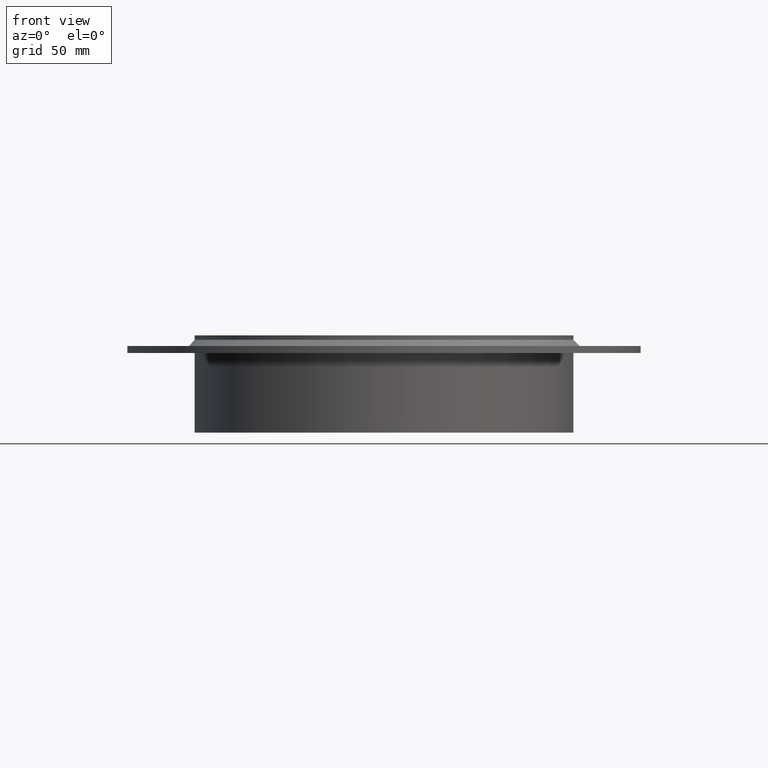
[diagram: clean part render]
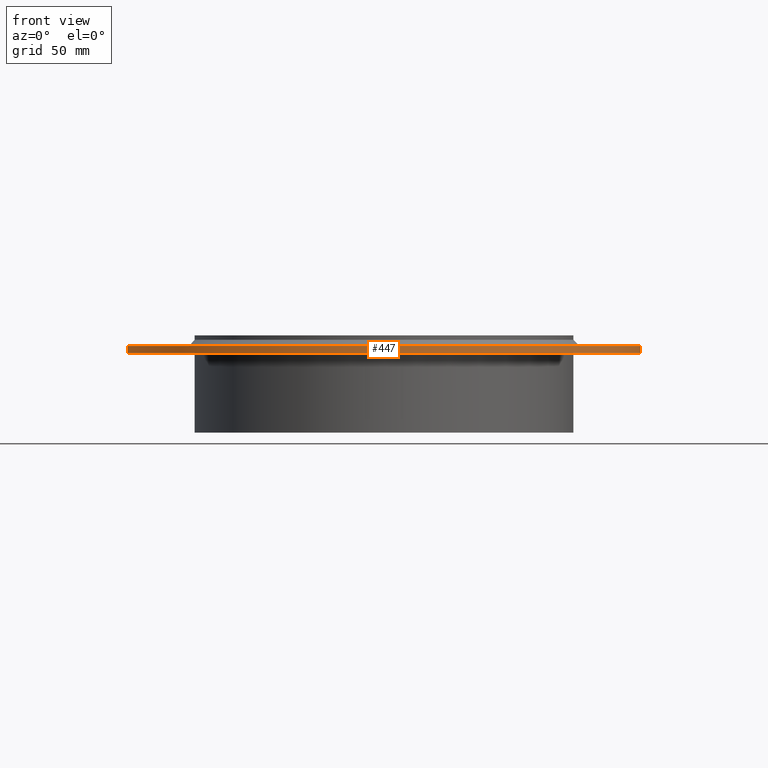
[diagram: same view with one face highlighted and labeled with its STEP entity id]
A machine part, front view. The second image highlights one B-rep face of the part: STEP entity #447.
In plain terms, the highlighted cylindrical surface (bore or boss wall) has radius 145 mm, axis along (0, 0, 1).
Its self-contained STEP definition (entity closure, byte-faithful):
#325=CARTESIAN_POINT('',(145.0,1.775738E-014,-6.000000000000002));
#326=VERTEX_POINT('',#325);
#327=CARTESIAN_POINT('',(0.0,0.0,-6.000000000000002));
#328=DIRECTION('',(0.0,0.0,1.0));
#329=DIRECTION('',(-1.0,0.0,0.0));
#330=AXIS2_PLACEMENT_3D('',#327,#328,#329);
#331=CIRCLE('',#330,145.0);
#332=EDGE_CURVE('',#326,#326,#331,.T.);
#389=CARTESIAN_POINT('',(145.0,1.775738E-014,-10.0));
#390=VERTEX_POINT('',#389);
#391=CARTESIAN_POINT('',(0.0,0.0,-10.0));
#392=DIRECTION('',(0.0,0.0,-1.0));
#393=DIRECTION('',(-1.0,0.0,0.0));
#394=AXIS2_PLACEMENT_3D('',#391,#392,#393);
#395=CIRCLE('',#394,145.0);
#396=EDGE_CURVE('',#390,#390,#395,.T.);
#436=CARTESIAN_POINT('',(0.0,0.0,-8.0));
#437=DIRECTION('',(0.0,0.0,1.0));
#438=DIRECTION('',(-1.0,0.0,0.0));
#439=AXIS2_PLACEMENT_3D('',#436,#437,#438);
#440=CYLINDRICAL_SURFACE('',#439,145.0);
#441=ORIENTED_EDGE('',*,*,#396,.F.);
#442=EDGE_LOOP('',(#441));
#443=FACE_OUTER_BOUND('',#442,.T.);
#444=ORIENTED_EDGE('',*,*,#332,.F.);
#445=EDGE_LOOP('',(#444));
#446=FACE_BOUND('',#445,.T.);
#447=ADVANCED_FACE('',(#443,#446),#440,.T.);